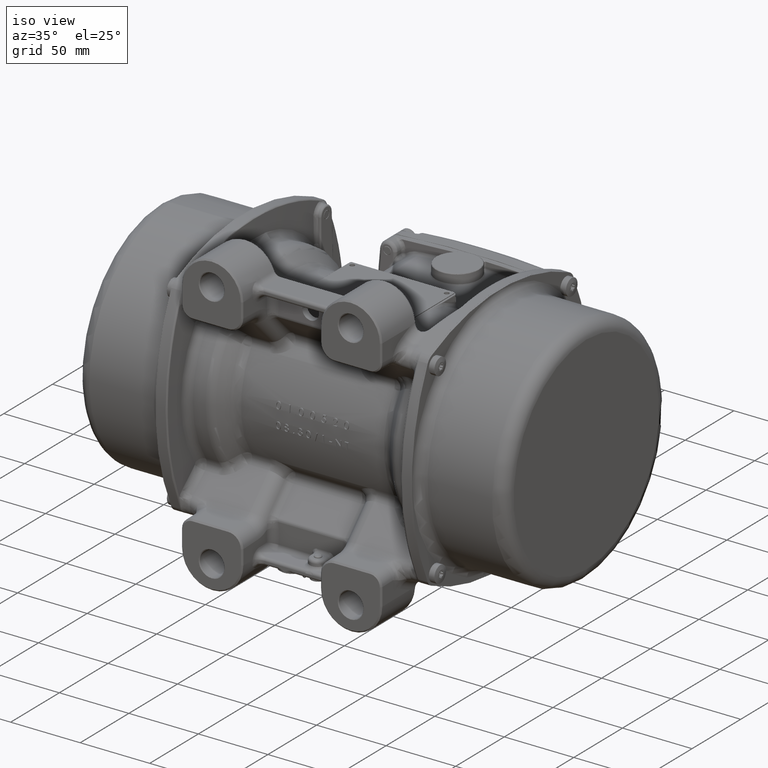
[diagram: clean part render]
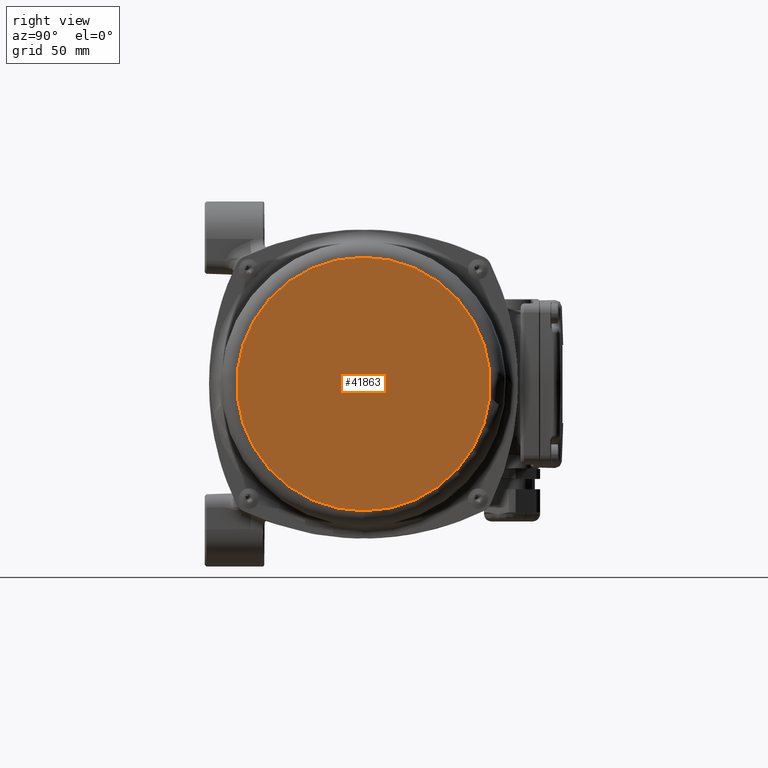
[diagram: tour spotlight — one face highlighted and labeled with its STEP entity id]
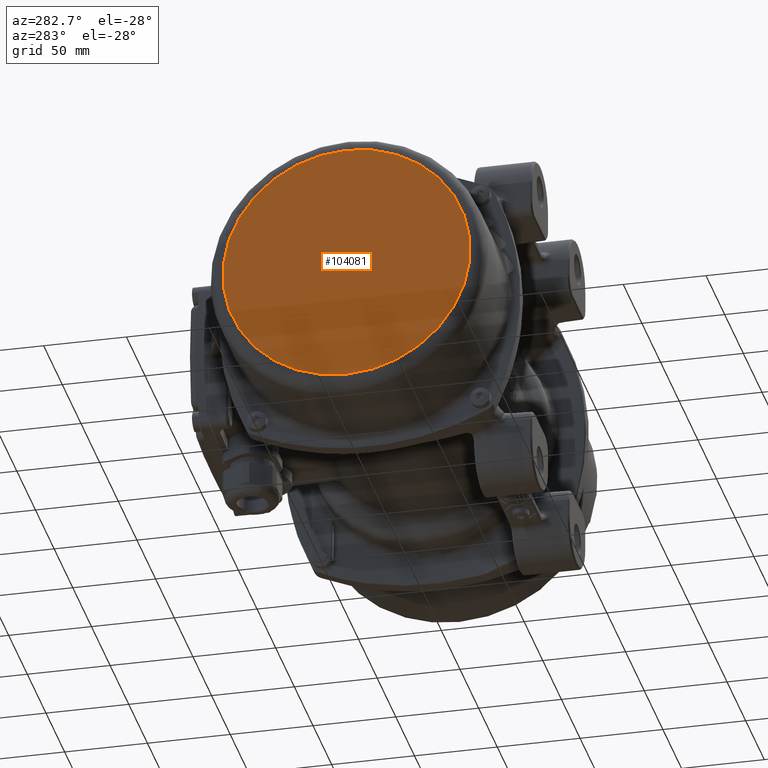
[diagram: tour spotlight — one face highlighted and labeled with its STEP entity id]
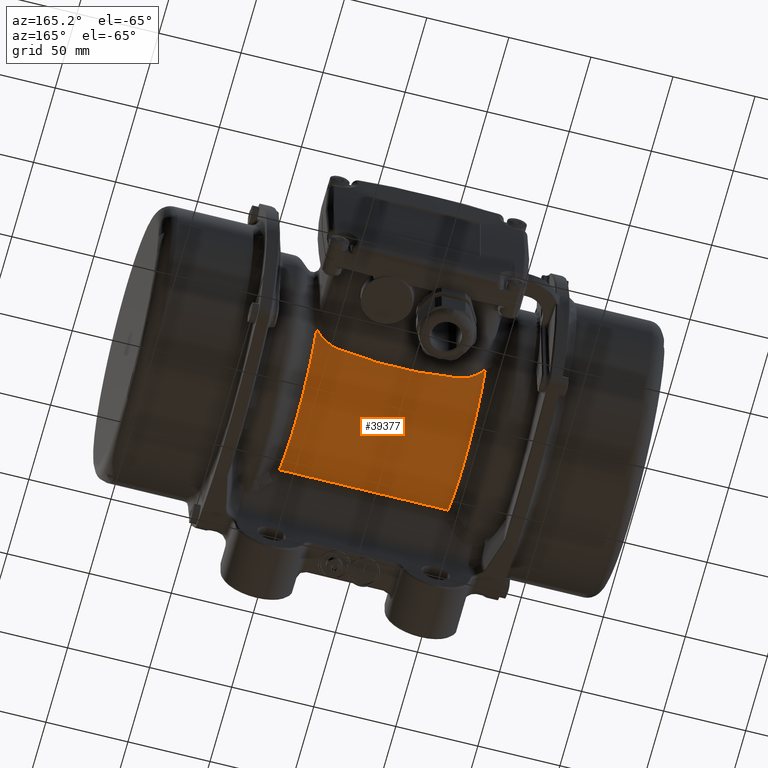
[diagram: tour spotlight — one face highlighted and labeled with its STEP entity id]
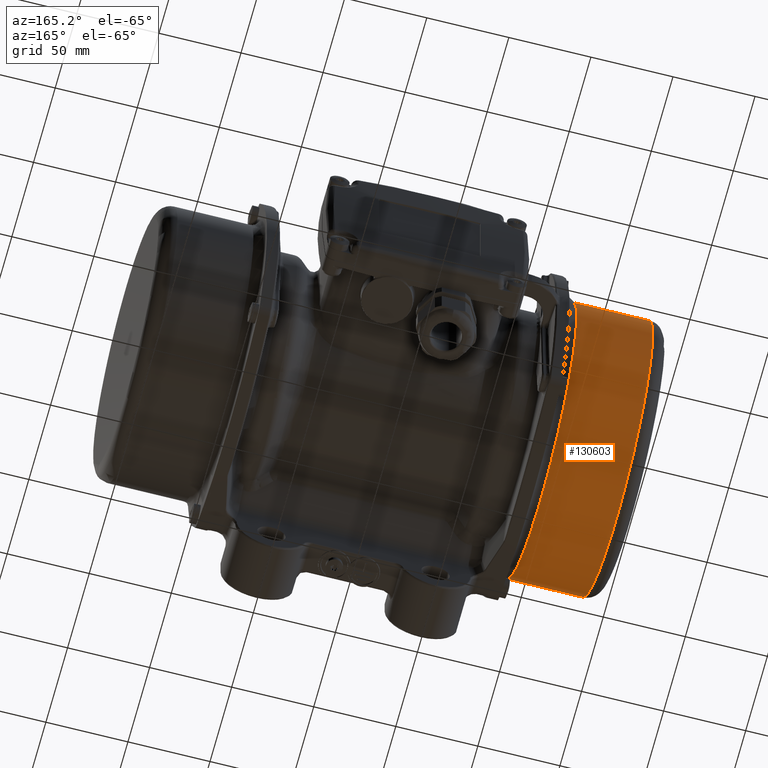
[diagram: tour spotlight — one face highlighted and labeled with its STEP entity id]
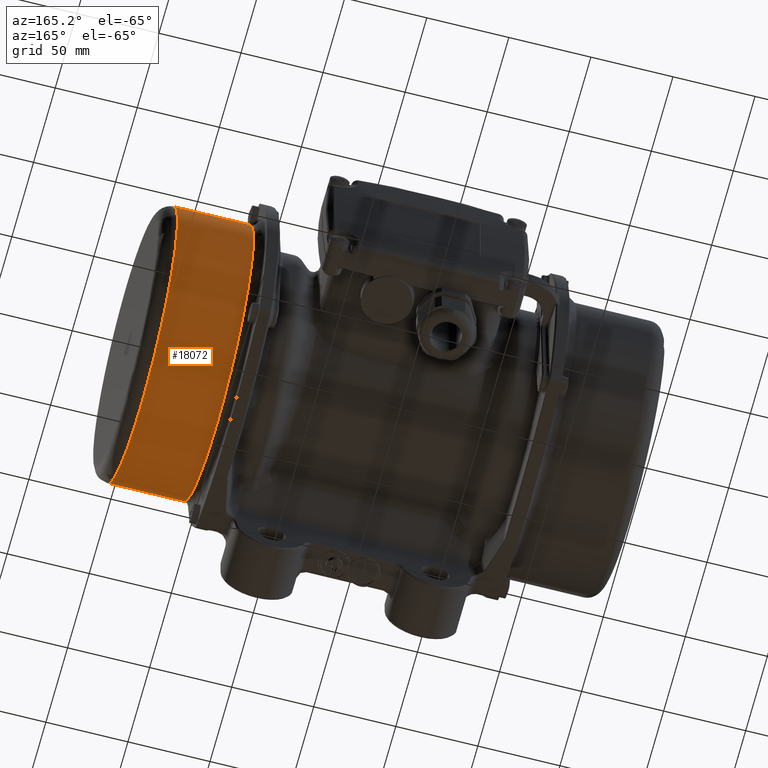
[diagram: tour spotlight — one face highlighted and labeled with its STEP entity id]
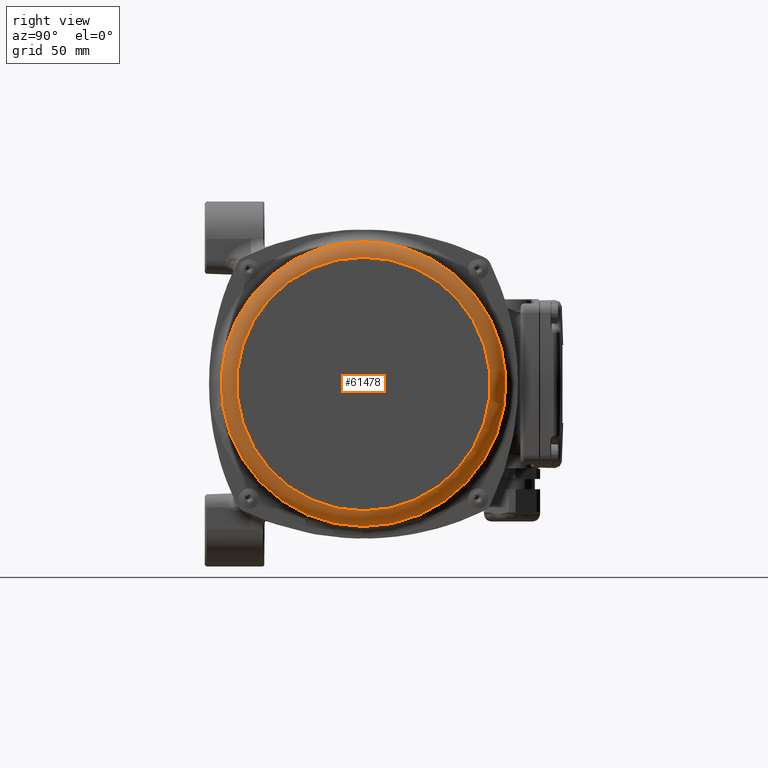
[diagram: tour spotlight — one face highlighted and labeled with its STEP entity id]
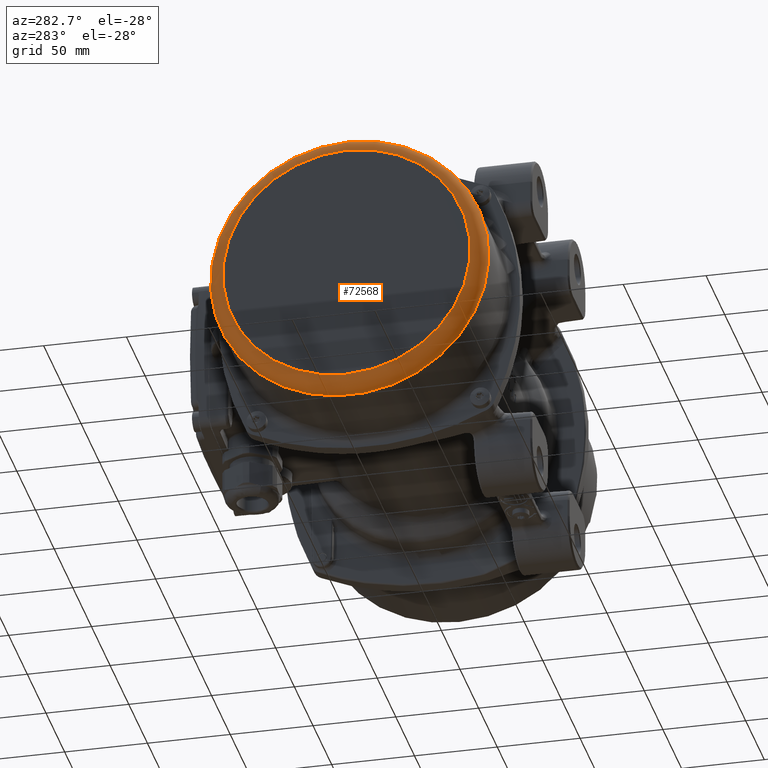
[diagram: tour spotlight — one face highlighted and labeled with its STEP entity id]
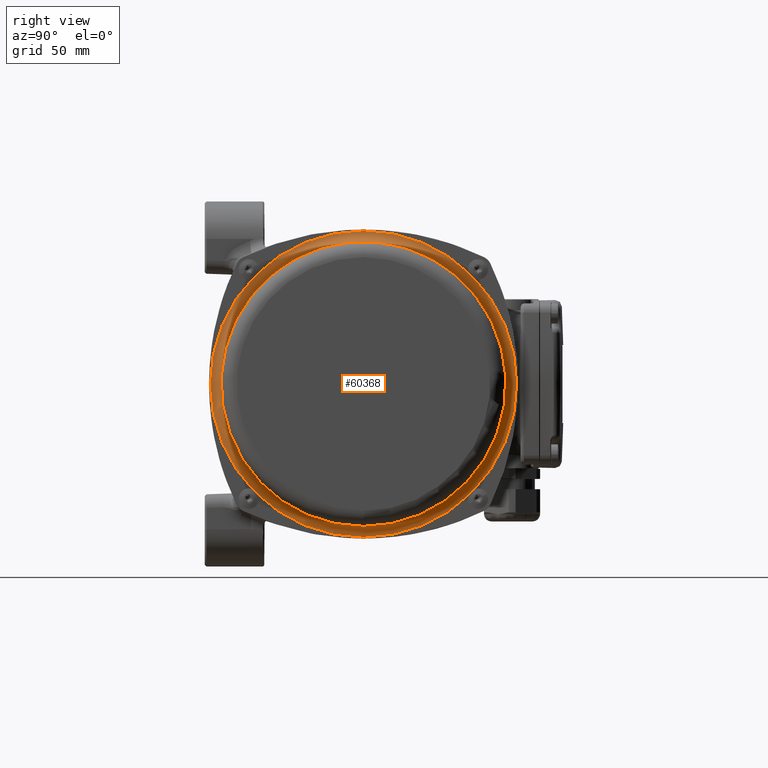
[diagram: tour spotlight — one face highlighted and labeled with its STEP entity id]
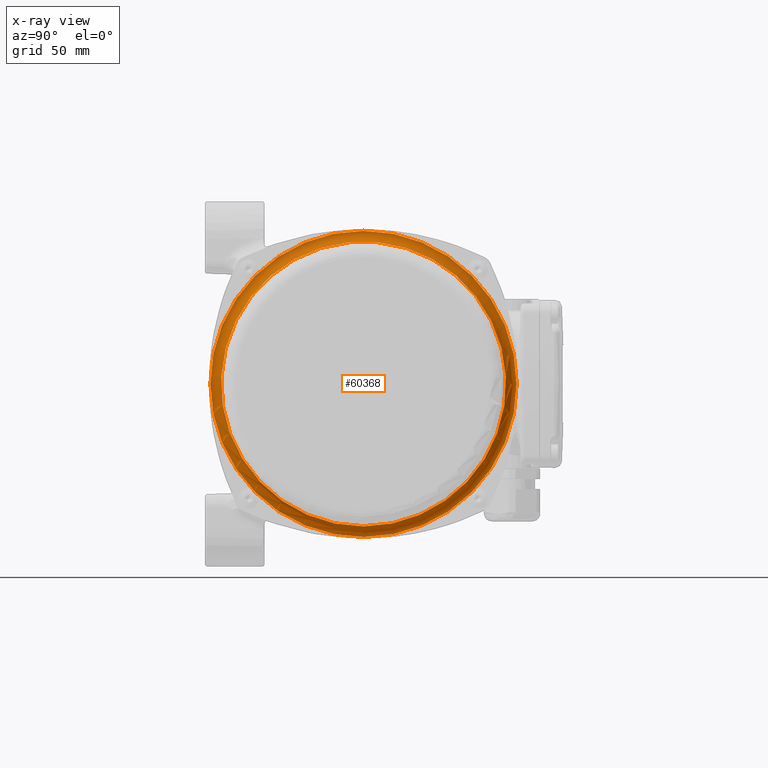
[diagram: x-ray of the same camera — body ghosted, this tour face saturated]
A machine part: a face-by-face anatomy tour. The part has 2952 B-rep faces; the first image is the clean iso view, then the 8 largest visible faces are spotlighted one at a time (largest first), each with its STEP entity span.

Face 1 — right view, entity #41863. In plain terms, the highlighted planar face has unit normal (1, 0, 0).
Definition (entity closure, byte-faithful):
#282 = DIRECTION ( 'NONE',  ( 0.0000000000000000000, -6.494804694057162600E-015, -1.000000000000000000 ) ) ;
#4224 = CARTESIAN_POINT ( 'NONE',  ( 154.0000000000000000, 74.70000000000000300, -9.576351768266349000E-013 ) ) ;
#24265 = DIRECTION ( 'NONE',  ( 1.000000000000000000, 2.347389796388319500E-016, 1.001652887148232700E-016 ) ) ;
#28013 = AXIS2_PLACEMENT_3D ( 'NONE', #4224, #24265, #46144 ) ;
#33667 = CARTESIAN_POINT ( 'NONE',  ( 154.0000000000000000, -4.397089949886765400E-013, -4.724732661805650500E-013 ) ) ;
#41863 = ADVANCED_FACE ( 'NONE', ( #42793 ), #120075, .T. ) ;
#42793 = FACE_OUTER_BOUND ( 'NONE', #77129, .T. ) ;
#42816 = VERTEX_POINT ( 'NONE', #101309 ) ;
#46144 = DIRECTION ( 'NONE',  ( 1.001652887148248000E-016, -6.494804694057160200E-015, -1.000000000000000000 ) ) ;
#73847 = CIRCLE ( 'NONE', #140439, 74.70000000000000300 ) ;
#75985 = DIRECTION ( 'NONE',  ( 1.000000000000000000, 2.347389796388320000E-016, 1.001652887148231900E-016 ) ) ;
#77129 = EDGE_LOOP ( 'NONE', ( #82616 ) ) ;
#82616 = ORIENTED_EDGE ( 'NONE', *, *, #123639, .T. ) ;
#101309 = CARTESIAN_POINT ( 'NONE',  ( 154.0000000000000000, -9.248709056347464500E-013, -74.70000000000047200 ) ) ;
#120075 = PLANE ( 'NONE',  #28013 ) ;
#123639 = EDGE_CURVE ( 'NONE', #42816, #42816, #73847, .T. ) ;
#140439 = AXIS2_PLACEMENT_3D ( 'NONE', #33667, #75985, #282 ) ;

Face 2 — auxiliary view, entity #104081. In plain terms, the highlighted planar face has unit normal (-1, -0, 0).
Definition (entity closure, byte-faithful):
#1134 = CIRCLE ( 'NONE', #51094, 74.70000000000000300 ) ;
#2125 = AXIS2_PLACEMENT_3D ( 'NONE', #80139, #134904, #112137 ) ;
#35691 = CARTESIAN_POINT ( 'NONE',  ( -153.9999999999999700, -7.720032159834038500E-013, 74.69999999999980400 ) ) ;
#39434 = DIRECTION ( 'NONE',  ( 3.715605838772277400E-016, -7.494005416219811400E-015, 1.000000000000000000 ) ) ;
#51094 = AXIS2_PLACEMENT_3D ( 'NONE', #115174, #125676, #39434 ) ;
#63021 = EDGE_LOOP ( 'NONE', ( #115447 ) ) ;
#64176 = FACE_OUTER_BOUND ( 'NONE', #63021, .T. ) ;
#80139 = CARTESIAN_POINT ( 'NONE',  ( -154.0000000000000000, 74.70000000000000300, 3.502886908875775100E-013 ) ) ;
#83586 = VERTEX_POINT ( 'NONE', #35691 ) ;
#104081 = ADVANCED_FACE ( 'NONE', ( #64176 ), #124973, .T. ) ;
#112137 = DIRECTION ( 'NONE',  ( 3.164488697656979600E-016, -7.494005416219811400E-015, 1.000000000000000000 ) ) ;
#115174 = CARTESIAN_POINT ( 'NONE',  ( -154.0000000000000000, -2.122010113917839600E-013, -1.960367939638735000E-013 ) ) ;
#115447 = ORIENTED_EDGE ( 'NONE', *, *, #126935, .T. ) ;
#124973 = PLANE ( 'NONE',  #2125 ) ;
#125676 = DIRECTION ( 'NONE',  ( -1.000000000000000000, -1.191054162939857900E-016, 3.164488697656969700E-016 ) ) ;
#126935 = EDGE_CURVE ( 'NONE', #83586, #83586, #1134, .T. ) ;
#134904 = DIRECTION ( 'NONE',  ( -1.000000000000000000, -1.191054162939857900E-016, 3.164488697656970700E-016 ) ) ;

Face 3 — auxiliary view, entity #39377. In plain terms, the highlighted cylindrical surface (partial cylindrical patch) has radius 61.5 mm, axis along (1, 0, 0).
Definition (entity closure, byte-faithful):
#6788 = ORIENTED_EDGE ( 'NONE', *, *, #14662, .T. ) ;
#6868 = CARTESIAN_POINT ( 'NONE',  ( 51.36683324359469800, 51.36350239038800700, -33.82366955539575300 ) ) ;
#12210 = CARTESIAN_POINT ( 'NONE',  ( 51.36683324359469800, 51.36350239038800700, -33.82366955539575300 ) ) ;
#14662 = EDGE_CURVE ( 'NONE', #49251, #138598, #76589, .T. ) ;
#15015 = CARTESIAN_POINT ( 'NONE',  ( 30.53394064317076200, 45.05918840119725400, -41.86555857907365000 ) ) ;
#16317 = DIRECTION ( 'NONE',  ( -2.256550863059261500E-016, 1.000000000000000000, 0.0000000000000000000 ) ) ;
#16930 = AXIS2_PLACEMENT_3D ( 'NONE', #39206, #125431, #16317 ) ;
#17337 = CARTESIAN_POINT ( 'NONE',  ( 44.26749771561844700, 47.49818087115568200, -39.06838742582049000 ) ) ;
#18749 = CARTESIAN_POINT ( 'NONE',  ( 42.29620551257207900, 46.80827028266510600, -39.89180593488848800 ) ) ;
#20507 = CARTESIAN_POINT ( 'NONE',  ( -36.64072877180479500, 45.66040996016249700, -41.19923497190080000 ) ) ;
#28316 = CARTESIAN_POINT ( 'NONE',  ( 46.13289338346925900, 48.26855378466551400, -38.11903781614861900 ) ) ;
#34813 = ORIENTED_EDGE ( 'NONE', *, *, #48619, .T. ) ;
#36553 = LINE ( 'NONE', #81107, #45009 ) ;
#36959 = CARTESIAN_POINT ( 'NONE',  ( 36.64072877180490200, 45.66040996016249700, -41.19923497190080000 ) ) ;
#38199 = CYLINDRICAL_SURFACE ( 'NONE', #16930, 61.50000000000000000 ) ;
#39206 = CARTESIAN_POINT ( 'NONE',  ( 101.5000000000000000, 3.439524944109925000E-014, 0.0000000000000000000 ) ) ;
#39377 = ADVANCED_FACE ( 'NONE', ( #63768 ), #38199, .T. ) ;
#41485 = CARTESIAN_POINT ( 'NONE',  ( -42.35070994937519400, 46.79742897946828600, -39.90680531180355200 ) ) ;
#42129 = DIRECTION ( 'NONE',  ( -3.384826294588891900E-016, 1.000000000000000000, 0.0000000000000000000 ) ) ;
#42892 = CARTESIAN_POINT ( 'NONE',  ( -45.53314004632925800, 48.02736497072875500, -38.41445608058566600 ) ) ;
#45009 = VECTOR ( 'NONE', #92566, 1000.000000000000000 ) ;
#48619 = EDGE_CURVE ( 'NONE', #78655, #104621, #105073, .T. ) ;
#49251 = VERTEX_POINT ( 'NONE', #12210 ) ;
#53297 = CARTESIAN_POINT ( 'NONE',  ( -40.27683233564967200, 46.25655058512230500, -40.52970694794947800 ) ) ;
#54322 = VERTEX_POINT ( 'NONE', #115879 ) ;
#54841 = AXIS2_PLACEMENT_3D ( 'NONE', #64028, #78256, #42129 ) ;
#55998 = CARTESIAN_POINT ( 'NONE',  ( -36.64072877180479500, 45.66040996016249700, -41.19923497190080000 ) ) ;
#58308 = CARTESIAN_POINT ( 'NONE',  ( -51.36683324359469800, 51.36350239038790000, -33.82366955539580300 ) ) ;
#58778 = AXIS2_PLACEMENT_3D ( 'NONE', #92289, #59903, #132795 ) ;
#59903 = DIRECTION ( 'NONE',  ( -1.000000000000000000, -3.061616997868385100E-016, -0.0000000000000000000 ) ) ;
#61153 = CARTESIAN_POINT ( 'NONE',  ( 49.44460976294215700, 50.07187825612177100, -35.71228296956515900 ) ) ;
#61635 = CARTESIAN_POINT ( 'NONE',  ( 43.62282195585368100, 47.25532367438406600, -39.36120846761478700 ) ) ;
#62452 = CARTESIAN_POINT ( 'NONE',  ( -38.11729689752100100, 45.83667163015863400, -41.00351525518137700 ) ) ;
#63393 = CARTESIAN_POINT ( 'NONE',  ( -39.56441876813889300, 46.09814993318057200, -40.70932696754992000 ) ) ;
#63768 = FACE_OUTER_BOUND ( 'NONE', #125437, .T. ) ;
#63853 = CARTESIAN_POINT ( 'NONE',  ( -37.38408965269452700, 45.73359484528839400, -41.11812541100688600 ) ) ;
#64028 = CARTESIAN_POINT ( 'NONE',  ( -51.36683324359460600, -1.240672006579081900E-014, 0.0000000000000000000 ) ) ;
#68043 = VERTEX_POINT ( 'NONE', #133746 ) ;
#71603 = CARTESIAN_POINT ( 'NONE',  ( 36.64072877180490200, 45.66040996016249700, -41.19923497190080000 ) ) ;
#73827 = CARTESIAN_POINT ( 'NONE',  ( -43.66237573442150200, 47.24715720380716300, -39.37803988183443900 ) ) ;
#76589 = CIRCLE ( 'NONE', #58778, 61.50000000000000000 ) ;
#76949 = CIRCLE ( 'NONE', #54841, 61.50000000000000000 ) ;
#78256 = DIRECTION ( 'NONE',  ( 1.000000000000000000, 3.061616997868385100E-016, 0.0000000000000000000 ) ) ;
#78655 = VERTEX_POINT ( 'NONE', #58308 ) ;
#78823 = CARTESIAN_POINT ( 'NONE',  ( 6.765421556309540100E-014, 43.61740027586217400, -43.35515467347041600 ) ) ;
#80137 = CARTESIAN_POINT ( 'NONE',  ( 48.92296310136839600, 49.75735098375101700, -36.14858959753721700 ) ) ;
#81107 = CARTESIAN_POINT ( 'NONE',  ( 101.5000000000000000, -34.61027141481075400, -50.83678896815899900 ) ) ;
#82478 = ORIENTED_EDGE ( 'NONE', *, *, #99624, .T. ) ;
#82525 = CARTESIAN_POINT ( 'NONE',  ( 39.55527558466050700, 46.07026641682248400, -40.74404544284222900 ) ) ;
#83471 = CARTESIAN_POINT ( 'NONE',  ( 38.12758436090944500, 45.80679290589562700, -41.03700124795155800 ) ) ;
#83944 = CARTESIAN_POINT ( 'NONE',  ( 41.62057896121356700, 46.60609284836723300, -40.12725110321814300 ) ) ;
#84497 = ORIENTED_EDGE ( 'NONE', *, *, #91397, .T. ) ;
#84754 = CARTESIAN_POINT ( 'NONE',  ( -46.13795008093530500, 48.30046611931843600, -38.07050294723464400 ) ) ;
#85050 = ORIENTED_EDGE ( 'NONE', *, *, #91825, .T. ) ;
#85685 = CARTESIAN_POINT ( 'NONE',  ( -49.47431442749096700, 50.06884834030172000, -35.72671591095667800 ) ) ;
#88849 = CARTESIAN_POINT ( 'NONE',  ( -24.42715251453652000, 44.58539866716069600, -42.36276519705862100 ) ) ;
#89326 = CARTESIAN_POINT ( 'NONE',  ( -30.53394064317066300, 45.05918840119725400, -41.86555857907370600 ) ) ;
#89796 = CARTESIAN_POINT ( 'NONE',  ( 12.21357625726834300, 43.94665107686245900, -43.02503351049570300 ) ) ;
#91397 = EDGE_CURVE ( 'NONE', #54322, #78655, #76949, .T. ) ;
#91825 = EDGE_CURVE ( 'NONE', #68043, #49251, #118746, .T. ) ;
#92289 = CARTESIAN_POINT ( 'NONE',  ( 51.36683324359469800, 1.904639389126120200E-014, 0.0000000000000000000 ) ) ;
#92566 = DIRECTION ( 'NONE',  ( -1.000000000000000000, -3.061616997868385100E-016, -0.0000000000000000000 ) ) ;
#96016 = CARTESIAN_POINT ( 'NONE',  ( 51.36683324359469800, -34.61027141481080300, -50.83678896815889900 ) ) ;
#96660 = CARTESIAN_POINT ( 'NONE',  ( -45.22413432978132200, 47.89354624890921000, -38.58108792857120800 ) ) ;
#99624 = EDGE_CURVE ( 'NONE', #138598, #54322, #36553, .T. ) ;
#99784 = CARTESIAN_POINT ( 'NONE',  ( -12.21357625726822200, 43.94665107686245900, -43.02503351049567500 ) ) ;
#100702 = CARTESIAN_POINT ( 'NONE',  ( 24.42715251453663000, 44.58539866716071000, -42.36276519705860700 ) ) ;
#104621 = VERTEX_POINT ( 'NONE', #111038 ) ;
#104947 = ORIENTED_EDGE ( 'NONE', *, *, #110427, .T. ) ;
#105073 = B_SPLINE_CURVE_WITH_KNOTS ( 'NONE', 3,
 ( #129557, #118670, #85685, #118183, #129093, #140489, #84754, #42892, #96660, #73827, #41485, #53297, #63393, #62452, #63853, #20507 ),
 .UNSPECIFIED., .F., .F.,
 ( 4, 2, 2, 2, 2, 2, 2, 4 ),
 ( 0.0000000000000000000, 0.004439218146582399000, 0.006658827219873594100, 0.007768631756519183900, 0.008878436293164773700, 0.01331765443974708200, 0.01553726351303823900, 0.01775687258632939800 ),
 .UNSPECIFIED. ) ;
#110427 = EDGE_CURVE ( 'NONE', #104621, #68043, #117108, .T. ) ;
#111038 = CARTESIAN_POINT ( 'NONE',  ( -36.64072877180479500, 45.66040996016249700, -41.19923497190080000 ) ) ;
#115879 = CARTESIAN_POINT ( 'NONE',  ( -51.36683324359460600, -34.61027141481080300, -50.83678896815899900 ) ) ;
#117108 = B_SPLINE_CURVE_WITH_KNOTS ( 'NONE', 3,
 ( #55998, #89326, #88849, #99784, #78823, #89796, #100702, #15015, #36959 ),
 .UNSPECIFIED., .F., .F.,
 ( 4, 2, 1, 2, 4 ),
 ( 0.0000000000000000000, 0.01832036438590242300, 0.03664072877180485400, 0.05496109315770728000, 0.07328145754360970700 ),
 .UNSPECIFIED. ) ;
#118183 = CARTESIAN_POINT ( 'NONE',  ( -47.86431316204082300, 49.16078869574661800, -36.95573441008493600 ) ) ;
#118670 = CARTESIAN_POINT ( 'NONE',  ( -50.46225581793017800, 50.70643267498947900, -34.82147382504328400 ) ) ;
#118746 = B_SPLINE_CURVE_WITH_KNOTS ( 'NONE', 3,
 ( #71603, #83471, #82525, #83944, #18749, #61635, #17337, #28316, #126451, #80137, #61153, #137325, #127390, #6868 ),
 .UNSPECIFIED., .F., .F.,
 ( 4, 2, 2, 2, 2, 2, 4 ),
 ( 0.0000000000000000000, 0.004436189149666052200, 0.006654283724499074900, 0.008872378299332097500, 0.01330856744899815100, 0.01552666202383118400, 0.01774475659866421600 ),
 .UNSPECIFIED. ) ;
#125431 = DIRECTION ( 'NONE',  ( 1.000000000000000000, 3.061616997868385100E-016, 0.0000000000000000000 ) ) ;
#125437 = EDGE_LOOP ( 'NONE', ( #6788, #82478, #84497, #34813, #104947, #85050 ) ) ;
#126451 = CARTESIAN_POINT ( 'NONE',  ( 47.29376776391203700, 48.84008323980774000, -37.38922700958254800 ) ) ;
#127390 = CARTESIAN_POINT ( 'NONE',  ( 50.91463372248146200, 51.03503232004227600, -34.32247330629397200 ) ) ;
#129093 = CARTESIAN_POINT ( 'NONE',  ( -47.30611466767796000, 48.86623307356571600, -37.34375540534790600 ) ) ;
#129557 = CARTESIAN_POINT ( 'NONE',  ( -51.36683324359469800, 51.36350239038790000, -33.82366955539580300 ) ) ;
#132795 = DIRECTION ( 'NONE',  ( -3.384826294588891900E-016, 1.000000000000000000, 0.0000000000000000000 ) ) ;
#133746 = CARTESIAN_POINT ( 'NONE',  ( 36.64072877180490200, 45.66040996016249700, -41.19923497190080000 ) ) ;
#137325 = CARTESIAN_POINT ( 'NONE',  ( 50.43987118715533300, 50.71039359694694300, -34.79965701320772800 ) ) ;
#138598 = VERTEX_POINT ( 'NONE', #96016 ) ;
#140489 = CARTESIAN_POINT ( 'NONE',  ( -46.43431431550408200, 48.43995700399112500, -37.89293161125326000 ) ) ;

Face 4 — auxiliary view, entity #130603. In plain terms, the highlighted cylindrical surface (bore or boss wall) has radius 83.9 mm, axis along (-1, -0, 0).
Definition (entity closure, byte-faithful):
#466 = CYLINDRICAL_SURFACE ( 'NONE', #72865, 83.90000000000000600 ) ;
#1486 = CARTESIAN_POINT ( 'NONE',  ( -144.8000000000000100, -2.111052415618795100E-013, -1.989481235657179700E-013 ) ) ;
#5917 = ORIENTED_EDGE ( 'NONE', *, *, #62051, .T. ) ;
#13394 = DIRECTION ( 'NONE',  ( 3.308173494115484200E-016, -7.494005416219813000E-015, 1.000000000000000000 ) ) ;
#13648 = CARTESIAN_POINT ( 'NONE',  ( -98.50000000000000000, -2.055906607874679800E-013, -2.135997062358699700E-013 ) ) ;
#22465 = CARTESIAN_POINT ( 'NONE',  ( -152.7999999999999800, -2.120580848922314700E-013, -1.964165326075924600E-013 ) ) ;
#25055 = DIRECTION ( 'NONE',  ( -1.000000000000000000, -1.191054162939857900E-016, 3.164488697656969700E-016 ) ) ;
#29449 = FACE_OUTER_BOUND ( 'NONE', #63223, .T. ) ;
#32923 = FACE_OUTER_BOUND ( 'NONE', #41478, .T. ) ;
#41478 = EDGE_LOOP ( 'NONE', ( #113477 ) ) ;
#58934 = CIRCLE ( 'NONE', #104939, 83.90000000000000600 ) ;
#62051 = EDGE_CURVE ( 'NONE', #126326, #126326, #58934, .T. ) ;
#63223 = EDGE_LOOP ( 'NONE', ( #5917 ) ) ;
#65801 = CIRCLE ( 'NONE', #91571, 83.90000000000000600 ) ;
#66742 = DIRECTION ( 'NONE',  ( 3.308173494115484200E-016, -7.494005416219811400E-015, 1.000000000000000000 ) ) ;
#68365 = DIRECTION ( 'NONE',  ( 3.308173494115484200E-016, -7.494005416219811400E-015, 1.000000000000000000 ) ) ;
#72865 = AXIS2_PLACEMENT_3D ( 'NONE', #22465, #110094, #13394 ) ;
#75694 = CARTESIAN_POINT ( 'NONE',  ( -98.49999999999997200, -8.343377152083102400E-013, 83.89999999999979300 ) ) ;
#89544 = DIRECTION ( 'NONE',  ( -1.000000000000000000, -1.191054162939857900E-016, 3.164488697656969700E-016 ) ) ;
#91571 = AXIS2_PLACEMENT_3D ( 'NONE', #1486, #89544, #66742 ) ;
#99896 = CARTESIAN_POINT ( 'NONE',  ( -144.7999999999999800, -8.398522959827217400E-013, 83.89999999999980700 ) ) ;
#104571 = EDGE_CURVE ( 'NONE', #111017, #111017, #65801, .T. ) ;
#104939 = AXIS2_PLACEMENT_3D ( 'NONE', #13648, #25055, #68365 ) ;
#110094 = DIRECTION ( 'NONE',  ( -1.000000000000000000, -1.191054162939857900E-016, 3.164488697656969700E-016 ) ) ;
#111017 = VERTEX_POINT ( 'NONE', #99896 ) ;
#113477 = ORIENTED_EDGE ( 'NONE', *, *, #104571, .F. ) ;
#126326 = VERTEX_POINT ( 'NONE', #75694 ) ;
#130603 = ADVANCED_FACE ( 'NONE', ( #29449, #32923 ), #466, .T. ) ;

Face 5 — auxiliary view, entity #18072. In plain terms, the highlighted cylindrical surface (bore or boss wall) has radius 83.9 mm, axis along (1, 0, 0).
Definition (entity closure, byte-faithful):
#2078 = DIRECTION ( 'NONE',  ( 0.0000000000000000000, -6.494804694057160200E-015, -1.000000000000000000 ) ) ;
#18072 = ADVANCED_FACE ( 'NONE', ( #33796, #50765 ), #117301, .T. ) ;
#18640 = EDGE_CURVE ( 'NONE', #68455, #68455, #115490, .T. ) ;
#23374 = DIRECTION ( 'NONE',  ( 1.654086747057742100E-016, -6.494804694057161000E-015, -1.000000000000000000 ) ) ;
#23654 = AXIS2_PLACEMENT_3D ( 'NONE', #108341, #98284, #109288 ) ;
#24473 = AXIS2_PLACEMENT_3D ( 'NONE', #67321, #79155, #2078 ) ;
#31578 = CIRCLE ( 'NONE', #24473, 83.90000000000000600 ) ;
#32512 = CARTESIAN_POINT ( 'NONE',  ( 98.50000000000000000, -4.527370083586321000E-013, -4.780324397042380500E-013 ) ) ;
#33796 = FACE_OUTER_BOUND ( 'NONE', #131216, .T. ) ;
#42849 = AXIS2_PLACEMENT_3D ( 'NONE', #32512, #131951, #23374 ) ;
#50765 = FACE_OUTER_BOUND ( 'NONE', #99491, .T. ) ;
#51670 = ORIENTED_EDGE ( 'NONE', *, *, #120255, .F. ) ;
#52345 = CARTESIAN_POINT ( 'NONE',  ( 98.50000000000001400, -9.976511221900278100E-013, -83.90000000000047500 ) ) ;
#67321 = CARTESIAN_POINT ( 'NONE',  ( 144.8000000000000100, -4.418685936013539800E-013, -4.733947868367410000E-013 ) ) ;
#68455 = VERTEX_POINT ( 'NONE', #52345 ) ;
#79155 = DIRECTION ( 'NONE',  ( 1.000000000000000000, 2.347389796388320000E-016, 1.001652887148231900E-016 ) ) ;
#86794 = ORIENTED_EDGE ( 'NONE', *, *, #18640, .T. ) ;
#88966 = CARTESIAN_POINT ( 'NONE',  ( 144.8000000000000100, -9.867827074327498400E-013, -83.90000000000047500 ) ) ;
#98284 = DIRECTION ( 'NONE',  ( 1.000000000000000000, 2.347389796388320000E-016, 1.001652887148231900E-016 ) ) ;
#99491 = EDGE_LOOP ( 'NONE', ( #51670 ) ) ;
#108341 = CARTESIAN_POINT ( 'NONE',  ( 152.7999999999999800, -4.399906817642430700E-013, -4.725934645270229400E-013 ) ) ;
#109288 = DIRECTION ( 'NONE',  ( 0.0000000000000000000, -6.494804694057160200E-015, -1.000000000000000000 ) ) ;
#115490 = CIRCLE ( 'NONE', #42849, 83.90000000000000600 ) ;
#117301 = CYLINDRICAL_SURFACE ( 'NONE', #23654, 83.90000000000000600 ) ;
#120255 = EDGE_CURVE ( 'NONE', #129720, #129720, #31578, .T. ) ;
#129720 = VERTEX_POINT ( 'NONE', #88966 ) ;
#131216 = EDGE_LOOP ( 'NONE', ( #86794 ) ) ;
#131951 = DIRECTION ( 'NONE',  ( 1.000000000000000000, 2.347389796388320000E-016, 1.001652887148231900E-016 ) ) ;

Face 6 — right view, entity #61478. In plain terms, the highlighted toroidal blend (fillet) surface has major radius 74.7 mm and minor (blend) radius 9.2 mm.
Definition (entity closure, byte-faithful):
#282 = DIRECTION ( 'NONE',  ( 0.0000000000000000000, -6.494804694057162600E-015, -1.000000000000000000 ) ) ;
#2078 = DIRECTION ( 'NONE',  ( 0.0000000000000000000, -6.494804694057160200E-015, -1.000000000000000000 ) ) ;
#18255 = FACE_OUTER_BOUND ( 'NONE', #34461, .T. ) ;
#24473 = AXIS2_PLACEMENT_3D ( 'NONE', #67321, #79155, #2078 ) ;
#31578 = CIRCLE ( 'NONE', #24473, 83.90000000000000600 ) ;
#33667 = CARTESIAN_POINT ( 'NONE',  ( 154.0000000000000000, -4.397089949886765400E-013, -4.724732661805650500E-013 ) ) ;
#34461 = EDGE_LOOP ( 'NONE', ( #67326 ) ) ;
#42816 = VERTEX_POINT ( 'NONE', #101309 ) ;
#47210 = TOROIDAL_SURFACE ( 'NONE', #96613, 74.70000000000000300, 9.199999999999999300 ) ;
#61478 = ADVANCED_FACE ( 'NONE', ( #72770, #18255 ), #47210, .T. ) ;
#67321 = CARTESIAN_POINT ( 'NONE',  ( 144.8000000000000100, -4.418685936013539800E-013, -4.733947868367410000E-013 ) ) ;
#67326 = ORIENTED_EDGE ( 'NONE', *, *, #123639, .F. ) ;
#72770 = FACE_OUTER_BOUND ( 'NONE', #128057, .T. ) ;
#73847 = CIRCLE ( 'NONE', #140439, 74.70000000000000300 ) ;
#75985 = DIRECTION ( 'NONE',  ( 1.000000000000000000, 2.347389796388320000E-016, 1.001652887148231900E-016 ) ) ;
#79155 = DIRECTION ( 'NONE',  ( 1.000000000000000000, 2.347389796388320000E-016, 1.001652887148231900E-016 ) ) ;
#88966 = CARTESIAN_POINT ( 'NONE',  ( 144.8000000000000100, -9.867827074327498400E-013, -83.90000000000047500 ) ) ;
#96613 = AXIS2_PLACEMENT_3D ( 'NONE', #117775, #107232, #116832 ) ;
#101309 = CARTESIAN_POINT ( 'NONE',  ( 154.0000000000000000, -9.248709056347464500E-013, -74.70000000000047200 ) ) ;
#107232 = DIRECTION ( 'NONE',  ( 1.000000000000000000, 2.347389796388320000E-016, 1.001652887148231900E-016 ) ) ;
#109493 = ORIENTED_EDGE ( 'NONE', *, *, #120255, .T. ) ;
#116832 = DIRECTION ( 'NONE',  ( 1.001652887148247200E-016, -6.494804694057159500E-015, -1.000000000000000000 ) ) ;
#117775 = CARTESIAN_POINT ( 'NONE',  ( 144.8000000000000100, -4.418685936013539800E-013, -4.733947868367410000E-013 ) ) ;
#120255 = EDGE_CURVE ( 'NONE', #129720, #129720, #31578, .T. ) ;
#123639 = EDGE_CURVE ( 'NONE', #42816, #42816, #73847, .T. ) ;
#128057 = EDGE_LOOP ( 'NONE', ( #109493 ) ) ;
#129720 = VERTEX_POINT ( 'NONE', #88966 ) ;
#140439 = AXIS2_PLACEMENT_3D ( 'NONE', #33667, #75985, #282 ) ;

Face 7 — auxiliary view, entity #72568. In plain terms, the highlighted toroidal blend (fillet) surface has major radius 74.7 mm and minor (blend) radius 9.2 mm.
Definition (entity closure, byte-faithful):
#330 = FACE_OUTER_BOUND ( 'NONE', #68156, .T. ) ;
#1134 = CIRCLE ( 'NONE', #51094, 74.70000000000000300 ) ;
#1486 = CARTESIAN_POINT ( 'NONE',  ( -144.8000000000000100, -2.111052415618795100E-013, -1.989481235657179700E-013 ) ) ;
#35691 = CARTESIAN_POINT ( 'NONE',  ( -153.9999999999999700, -7.720032159834038500E-013, 74.69999999999980400 ) ) ;
#39434 = DIRECTION ( 'NONE',  ( 3.715605838772277400E-016, -7.494005416219811400E-015, 1.000000000000000000 ) ) ;
#42550 = DIRECTION ( 'NONE',  ( -1.000000000000000000, -1.191054162939857900E-016, 3.164488697656969700E-016 ) ) ;
#48639 = ORIENTED_EDGE ( 'NONE', *, *, #126935, .F. ) ;
#51094 = AXIS2_PLACEMENT_3D ( 'NONE', #115174, #125676, #39434 ) ;
#53028 = FACE_OUTER_BOUND ( 'NONE', #89037, .T. ) ;
#65370 = CARTESIAN_POINT ( 'NONE',  ( -144.8000000000000100, -2.111052415618795100E-013, -1.989481235657179700E-013 ) ) ;
#65801 = CIRCLE ( 'NONE', #91571, 83.90000000000000600 ) ;
#66742 = DIRECTION ( 'NONE',  ( 3.308173494115484200E-016, -7.494005416219811400E-015, 1.000000000000000000 ) ) ;
#68156 = EDGE_LOOP ( 'NONE', ( #107633 ) ) ;
#72568 = ADVANCED_FACE ( 'NONE', ( #330, #53028 ), #76961, .T. ) ;
#76961 = TOROIDAL_SURFACE ( 'NONE', #101203, 74.70000000000000300, 9.199999999999999300 ) ;
#83586 = VERTEX_POINT ( 'NONE', #35691 ) ;
#86276 = DIRECTION ( 'NONE',  ( 3.164488697656978600E-016, -7.494005416219811400E-015, 1.000000000000000000 ) ) ;
#89037 = EDGE_LOOP ( 'NONE', ( #48639 ) ) ;
#89544 = DIRECTION ( 'NONE',  ( -1.000000000000000000, -1.191054162939857900E-016, 3.164488697656969700E-016 ) ) ;
#91571 = AXIS2_PLACEMENT_3D ( 'NONE', #1486, #89544, #66742 ) ;
#99896 = CARTESIAN_POINT ( 'NONE',  ( -144.7999999999999800, -8.398522959827217400E-013, 83.89999999999980700 ) ) ;
#101203 = AXIS2_PLACEMENT_3D ( 'NONE', #65370, #42550, #86276 ) ;
#104571 = EDGE_CURVE ( 'NONE', #111017, #111017, #65801, .T. ) ;
#107633 = ORIENTED_EDGE ( 'NONE', *, *, #104571, .T. ) ;
#111017 = VERTEX_POINT ( 'NONE', #99896 ) ;
#115174 = CARTESIAN_POINT ( 'NONE',  ( -154.0000000000000000, -2.122010113917839600E-013, -1.960367939638735000E-013 ) ) ;
#125676 = DIRECTION ( 'NONE',  ( -1.000000000000000000, -1.191054162939857900E-016, 3.164488697656969700E-016 ) ) ;
#126935 = EDGE_CURVE ( 'NONE', #83586, #83586, #1134, .T. ) ;

Face 8 — right view, entity #60368. An x-ray twin of the same camera follows (body ghosted, this face saturated) — the face is partly hidden behind the body. In plain terms, the highlighted toroidal blend (fillet) surface has major radius 90.2 mm and minor (blend) radius 6.3 mm.
Definition (entity closure, byte-faithful):
#11505 = DIRECTION ( 'NONE',  ( 1.538557406631314400E-016, -6.494804694057159500E-015, -1.000000000000000000 ) ) ;
#18640 = EDGE_CURVE ( 'NONE', #68455, #68455, #115490, .T. ) ;
#21692 = FACE_OUTER_BOUND ( 'NONE', #64659, .T. ) ;
#23374 = DIRECTION ( 'NONE',  ( 1.654086747057742100E-016, -6.494804694057161000E-015, -1.000000000000000000 ) ) ;
#25707 = VERTEX_POINT ( 'NONE', #68034 ) ;
#29428 = ORIENTED_EDGE ( 'NONE', *, *, #133144, .T. ) ;
#32512 = CARTESIAN_POINT ( 'NONE',  ( 98.50000000000000000, -4.527370083586321000E-013, -4.780324397042380500E-013 ) ) ;
#33101 = DIRECTION ( 'NONE',  ( 1.000000000000000000, 2.347389796388320000E-016, 1.001652887148231900E-016 ) ) ;
#42849 = AXIS2_PLACEMENT_3D ( 'NONE', #32512, #131951, #23374 ) ;
#50909 = AXIS2_PLACEMENT_3D ( 'NONE', #107818, #33101, #118365 ) ;
#51127 = CIRCLE ( 'NONE', #139648, 90.20000000000000300 ) ;
#52345 = CARTESIAN_POINT ( 'NONE',  ( 98.50000000000001400, -9.976511221900278100E-013, -83.90000000000047500 ) ) ;
#60368 = ADVANCED_FACE ( 'NONE', ( #115474, #21692 ), #112030, .F. ) ;
#64659 = EDGE_LOOP ( 'NONE', ( #100989 ) ) ;
#68034 = CARTESIAN_POINT ( 'NONE',  ( 92.20000000000001700, -1.040047247334311900E-012, -90.20000000000047200 ) ) ;
#68455 = VERTEX_POINT ( 'NONE', #52345 ) ;
#89343 = EDGE_LOOP ( 'NONE', ( #29428 ) ) ;
#100989 = ORIENTED_EDGE ( 'NONE', *, *, #18640, .F. ) ;
#107818 = CARTESIAN_POINT ( 'NONE',  ( 98.50000000000000000, -4.527370083586321000E-013, -4.780324397042380500E-013 ) ) ;
#109585 = DIRECTION ( 'NONE',  ( 1.000000000000000000, 2.347389796388320000E-016, 1.001652887148231900E-016 ) ) ;
#112030 = TOROIDAL_SURFACE ( 'NONE', #50909, 90.20000000000000300, 6.299999999999999800 ) ;
#115474 = FACE_OUTER_BOUND ( 'NONE', #89343, .T. ) ;
#115490 = CIRCLE ( 'NONE', #42849, 83.90000000000000600 ) ;
#118365 = DIRECTION ( 'NONE',  ( 1.001652887148247100E-016, -6.494804694057159500E-015, -1.000000000000000000 ) ) ;
#121064 = CARTESIAN_POINT ( 'NONE',  ( 92.20000000000000300, -4.542158639303560700E-013, -4.786634810231410600E-013 ) ) ;
#131951 = DIRECTION ( 'NONE',  ( 1.000000000000000000, 2.347389796388320000E-016, 1.001652887148231900E-016 ) ) ;
#133144 = EDGE_CURVE ( 'NONE', #25707, #25707, #51127, .T. ) ;
#139648 = AXIS2_PLACEMENT_3D ( 'NONE', #121064, #109585, #11505 ) ;